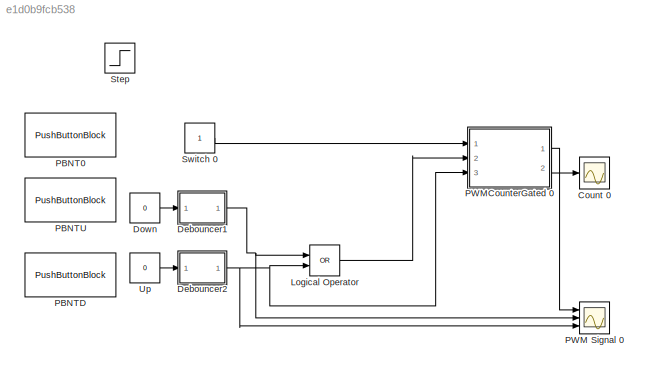
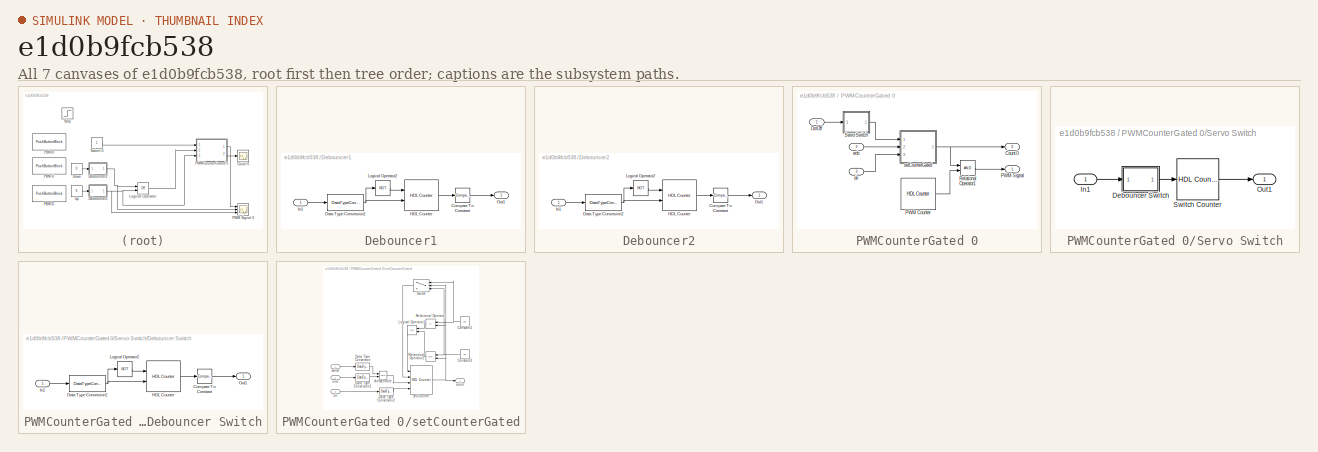
[diagram: thumbnail index - all 7 canvases of the model, root first then tree order]
MODEL slx_e1d0b9fcb538
KIND model
CONFIG AbsTol = auto
CONFIG EnableMultiTasking = off
CONFIG FixedStep = 1
CONFIG MaxStep = auto
CONFIG MinStep = auto
CONFIG RelTol = 1e-3
CONFIG SampleTimeConstraint = Unconstrained
CONFIG Solver = FixedStepDiscrete
CONFIG SolverName = FixedStepDiscrete
CONFIG StartTime = 0.0
CONFIG StopTime = 50000
BLOCK [Scope] Count 0
  Floating = off
  NumInputPorts = 1
  Ports = [1]
  ScopeSpecificationString = Simulink.scopes.TimeScopeBlockCfg('CurrentConfiguration', extmgr.ConfigurationSet(extmgr.Configuration('Core','General UI',true),extmgr.Configuration('Core','Source UI',true),extmgr.Configuration('Sources','WiredSimulink',true,'DataLoggingVariableName','ScopeData5'),extmgr.Configuration('Visuals','Time Domain',true,'SerializedDisplays',{struct('MinYLimReal','65.00000','MaxYLimReal','85.00000','YLa...<+1439ch>
BLOCK [SubSystem] Debouncer1
  Ports = [1, 1]
  RequestExecContextInheritance = off
BLOCK [Reference] Debouncer1/Compare To Constant  REF=simulink/Logic and Bit
Operations/Compare
To Constant
  Ports = [1, 1]
  SourceBlock = simulink/Logic and Bit\nOperations/Compare\nTo Constant
  SourceProductBaseCode = SL
  SourceProductName = Simulink
  SourceType = Compare To Constant
BLOCK [DataTypeConversion] Debouncer1/Data Type Conversion2
  OutDataTypeStr = boolean
  RndMeth = Floor
  SaturateOnIntegerOverflow = off
BLOCK [Reference] Debouncer1/HDL Counter   REF=hdlsllib/Sources/HDL Counter
  Ports = [2, 1]
  SourceBlock = hdlsllib/Sources/HDL Counter
  SourceProductBaseCode = HD
  SourceProductName = HDL Coder
  SourceType = HDL Counter
BLOCK [Inport] Debouncer1/In1
  IconDisplay = Port number
BLOCK [Logic] Debouncer1/Logical Operator2
  AllPortsSameDT = off
  Operator = NOT
  OutDataTypeStr = boolean
  Ports = [1, 1]
BLOCK [Outport] Debouncer1/Out1
  IconDisplay = Port number
BLOCK [SubSystem] Debouncer2
  Ports = [1, 1]
  RequestExecContextInheritance = off
BLOCK [Reference] Debouncer2/Compare To Constant  REF=simulink/Logic and Bit
Operations/Compare
To Constant
  Ports = [1, 1]
  SourceBlock = simulink/Logic and Bit\nOperations/Compare\nTo Constant
  SourceProductBaseCode = SL
  SourceProductName = Simulink
  SourceType = Compare To Constant
BLOCK [DataTypeConversion] Debouncer2/Data Type Conversion2
  OutDataTypeStr = boolean
  RndMeth = Floor
  SaturateOnIntegerOverflow = off
BLOCK [Reference] Debouncer2/HDL Counter   REF=hdlsllib/Sources/HDL Counter
  Ports = [2, 1]
  SourceBlock = hdlsllib/Sources/HDL Counter
  SourceProductBaseCode = HD
  SourceProductName = HDL Coder
  SourceType = HDL Counter
BLOCK [Inport] Debouncer2/In1
  IconDisplay = Port number
BLOCK [Logic] Debouncer2/Logical Operator2
  AllPortsSameDT = off
  Operator = NOT
  OutDataTypeStr = boolean
  Ports = [1, 1]
BLOCK [Outport] Debouncer2/Out1
  IconDisplay = Port number
BLOCK [Constant] Down
  Value = 0
BLOCK [Logic] Logical Operator
  AllPortsSameDT = off
  Operator = OR
  OutDataTypeStr = boolean
  Ports = [2, 1]
BLOCK [PushButtonBlock] PBNT0
  WebBlockId = 175
BLOCK [PushButtonBlock] PBNTD
  WebBlockId = 8
BLOCK [PushButtonBlock] PBNTU
  WebBlockId = 9
BLOCK [Scope] PWM Signal 0
  Floating = off
  NumInputPorts = 3
  Ports = [3]
  ScopeSpecificationString = Simulink.scopes.TimeScopeBlockCfg('CurrentConfiguration', extmgr.ConfigurationSet(extmgr.Configuration('Core','General UI',true),extmgr.Configuration('Core','Source UI',true),extmgr.Configuration('Sources','WiredSimulink',true),extmgr.Configuration('Visuals','Time Domain',true,'SerializedDisplays',{struct('MinYLimReal','-0.125','MaxYLimReal','1.125','YLabelReal','','MinYLimMag','0.00000','MaxYLimM...<+1406ch>
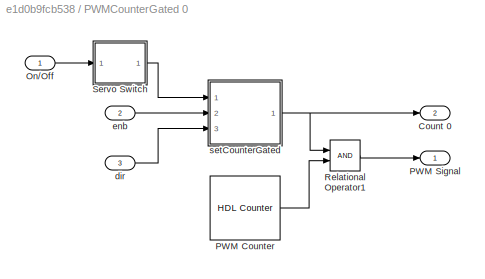
BLOCK [SubSystem] PWMCounterGated 0
  Ports = [3, 2]
  RequestExecContextInheritance = off
BLOCK [Outport] PWMCounterGated 0/Count 0
  IconDisplay = Port number
  Port = 2
BLOCK [Inport] PWMCounterGated 0/On//Off
  IconDisplay = Port number
BLOCK [Reference] PWMCounterGated 0/PWM Counter   REF=hdlsllib/Sources/HDL Counter
  Ports = [0, 1]
  SourceBlock = hdlsllib/Sources/HDL Counter
  SourceProductBaseCode = HD
  SourceProductName = HDL Coder
  SourceType = HDL Counter
BLOCK [Outport] PWMCounterGated 0/PWM Signal
  IconDisplay = Port number
BLOCK [RelationalOperator] PWMCounterGated 0/Relational Operator1
  InputSameDT = off
  OutDataTypeStr = boolean
  Ports = [2, 1]
  RndMeth = Simplest
BLOCK [SubSystem] PWMCounterGated 0/Servo Switch
  Ports = [1, 1]
  RequestExecContextInheritance = off
BLOCK [SubSystem] PWMCounterGated 0/Servo Switch/Debouncer Switch
  Ports = [1, 1]
  RequestExecContextInheritance = off
BLOCK [Reference] PWMCounterGated 0/Servo Switch/Debouncer Switch/Compare To Constant  REF=simulink/Logic and Bit
Operations/Compare
To Constant
  Ports = [1, 1]
  SourceBlock = simulink/Logic and Bit\nOperations/Compare\nTo Constant
  SourceProductBaseCode = SL
  SourceProductName = Simulink
  SourceType = Compare To Constant
BLOCK [DataTypeConversion] PWMCounterGated 0/Servo Switch/Debouncer Switch/Data Type Conversion2
  OutDataTypeStr = boolean
  RndMeth = Floor
  SaturateOnIntegerOverflow = off
BLOCK [Reference] PWMCounterGated 0/Servo Switch/Debouncer Switch/HDL Counter   REF=hdlsllib/Sources/HDL Counter
  Ports = [2, 1]
  SourceBlock = hdlsllib/Sources/HDL Counter
  SourceProductBaseCode = HD
  SourceProductName = HDL Coder
  SourceType = HDL Counter
BLOCK [Inport] PWMCounterGated 0/Servo Switch/Debouncer Switch/In1
  IconDisplay = Port number
BLOCK [Logic] PWMCounterGated 0/Servo Switch/Debouncer Switch/Logical Operator2
  AllPortsSameDT = off
  Operator = NOT
  OutDataTypeStr = boolean
  Ports = [1, 1]
BLOCK [Outport] PWMCounterGated 0/Servo Switch/Debouncer Switch/Out1
  IconDisplay = Port number
BLOCK [Inport] PWMCounterGated 0/Servo Switch/In1
  IconDisplay = Port number
BLOCK [Outport] PWMCounterGated 0/Servo Switch/Out1
  IconDisplay = Port number
BLOCK [Reference] PWMCounterGated 0/Servo Switch/Switch Counter  REF=hdlsllib/Sources/HDL Counter
  Ports = [1, 1]
  SourceBlock = hdlsllib/Sources/HDL Counter
  SourceProductBaseCode = HD
  SourceProductName = HDL Coder
  SourceType = HDL Counter
BLOCK [Inport] PWMCounterGated 0/dir
  IconDisplay = Port number
  Port = 3
BLOCK [Inport] PWMCounterGated 0/enb
  IconDisplay = Port number
  Port = 2
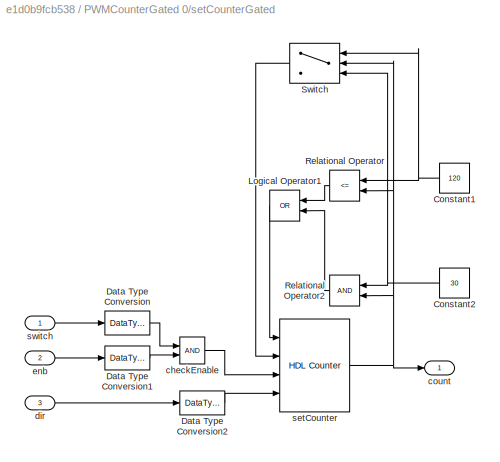
BLOCK [SubSystem] PWMCounterGated 0/setCounterGated
  Ports = [3, 1]
  RequestExecContextInheritance = off
BLOCK [Constant] PWMCounterGated 0/setCounterGated/Constant1
  OutDataTypeStr = double
  SampleTime = 1
  Value = 120
BLOCK [Constant] PWMCounterGated 0/setCounterGated/Constant2
  OutDataTypeStr = double
  SampleTime = 1
  Value = 30
BLOCK [DataTypeConversion] PWMCounterGated 0/setCounterGated/Data Type Conversion
  OutDataTypeStr = boolean
  RndMeth = Floor
  SaturateOnIntegerOverflow = off
BLOCK [DataTypeConversion] PWMCounterGated 0/setCounterGated/Data Type Conversion1
  OutDataTypeStr = boolean
  RndMeth = Floor
  SaturateOnIntegerOverflow = off
BLOCK [DataTypeConversion] PWMCounterGated 0/setCounterGated/Data Type Conversion2
  OutDataTypeStr = boolean
  RndMeth = Floor
  SaturateOnIntegerOverflow = off
BLOCK [Logic] PWMCounterGated 0/setCounterGated/Logical Operator1
  AllPortsSameDT = off
  Operator = OR
  OutDataTypeStr = boolean
  Ports = [2, 1]
BLOCK [RelationalOperator] PWMCounterGated 0/setCounterGated/Relational Operator
  InputSameDT = off
  Operator = <=
  OutDataTypeStr = boolean
  Ports = [2, 1]
  RndMeth = Simplest
BLOCK [RelationalOperator] PWMCounterGated 0/setCounterGated/Relational Operator2
  InputSameDT = off
  OutDataTypeStr = boolean
  Ports = [2, 1]
  RndMeth = Simplest
BLOCK [Switch] PWMCounterGated 0/setCounterGated/Switch
  Criteria = u2 > Threshold
  InputSameDT = off
  LockScale = on
  OutDataTypeStr = int16
  SaturateOnIntegerOverflow = off
  Threshold = 75
BLOCK [Logic] PWMCounterGated 0/setCounterGated/checkEnable
  AllPortsSameDT = off
  OutDataTypeStr = boolean
  Ports = [2, 1]
BLOCK [Outport] PWMCounterGated 0/setCounterGated/count
  IconDisplay = Port number
BLOCK [Inport] PWMCounterGated 0/setCounterGated/dir
  IconDisplay = Port number
  Port = 3
BLOCK [Inport] PWMCounterGated 0/setCounterGated/enb
  IconDisplay = Port number
  Port = 2
BLOCK [Reference] PWMCounterGated 0/setCounterGated/setCounter  REF=hdlsllib/Sources/HDL Counter
  Ports = [4, 1]
  SourceBlock = hdlsllib/Sources/HDL Counter
  SourceProductBaseCode = HD
  SourceProductName = HDL Coder
  SourceType = HDL Counter
BLOCK [Inport] PWMCounterGated 0/setCounterGated/switch
  IconDisplay = Port number
BLOCK [Step] Step
  SampleTime = 0
  Time = 12500
BLOCK [Constant] Switch 0
BLOCK [Constant] Up
  Value = 0
LINE Debouncer1/Compare To Constant:1 -> Debouncer1/Out1:1
NET Debouncer1/Data Type Conversion2:1 -> Debouncer1/HDL Counter :2, Debouncer1/Logical Operator2:1
LINE Debouncer1/HDL Counter :1 -> Debouncer1/Compare To Constant:1
LINE Debouncer1/In1:1 -> Debouncer1/Data Type Conversion2:1
LINE Debouncer1/Logical Operator2:1 -> Debouncer1/HDL Counter :1
NET Debouncer1:1 -> Logical Operator:1, PWM Signal 0:2
LINE Debouncer2/Compare To Constant:1 -> Debouncer2/Out1:1
NET Debouncer2/Data Type Conversion2:1 -> Debouncer2/HDL Counter :2, Debouncer2/Logical Operator2:1
LINE Debouncer2/HDL Counter :1 -> Debouncer2/Compare To Constant:1
LINE Debouncer2/In1:1 -> Debouncer2/Data Type Conversion2:1
LINE Debouncer2/Logical Operator2:1 -> Debouncer2/HDL Counter :1
NET Debouncer2:1 -> Logical Operator:2, PWM Signal 0:3, PWMCounterGated 0:3
LINE Down:1 -> Debouncer1:1
LINE Logical Operator:1 -> PWMCounterGated 0:2
LINE PWMCounterGated 0/On//Off:1 -> PWMCounterGated 0/Servo Switch:1
LINE PWMCounterGated 0/PWM Counter :1 -> PWMCounterGated 0/Relational Operator1:2
LINE PWMCounterGated 0/Relational Operator1:1 -> PWMCounterGated 0/PWM Signal:1
LINE PWMCounterGated 0/Servo Switch/Debouncer Switch/Compare To Constant:1 -> PWMCounterGated 0/Servo Switch/Debouncer Switch/Out1:1
NET PWMCounterGated 0/Servo Switch/Debouncer Switch/Data Type Conversion2:1 -> PWMCounterGated 0/Servo Switch/Debouncer Switch/HDL Counter :2, PWMCounterGated 0/Servo Switch/Debouncer Switch/Logical Operator2:1
LINE PWMCounterGated 0/Servo Switch/Debouncer Switch/HDL Counter :1 -> PWMCounterGated 0/Servo Switch/Debouncer Switch/Compare To Constant:1
LINE PWMCounterGated 0/Servo Switch/Debouncer Switch/In1:1 -> PWMCounterGated 0/Servo Switch/Debouncer Switch/Data Type Conversion2:1
LINE PWMCounterGated 0/Servo Switch/Debouncer Switch/Logical Operator2:1 -> PWMCounterGated 0/Servo Switch/Debouncer Switch/HDL Counter :1
LINE PWMCounterGated 0/Servo Switch/Debouncer Switch:1 -> PWMCounterGated 0/Servo Switch/Switch Counter:1
LINE PWMCounterGated 0/Servo Switch/In1:1 -> PWMCounterGated 0/Servo Switch/Debouncer Switch:1
LINE PWMCounterGated 0/Servo Switch/Switch Counter:1 -> PWMCounterGated 0/Servo Switch/Out1:1
LINE PWMCounterGated 0/Servo Switch:1 -> PWMCounterGated 0/setCounterGated:1
LINE PWMCounterGated 0/dir:1 -> PWMCounterGated 0/setCounterGated:3
LINE PWMCounterGated 0/enb:1 -> PWMCounterGated 0/setCounterGated:2
NET PWMCounterGated 0/setCounterGated/Constant1:1 -> PWMCounterGated 0/setCounterGated/Relational Operator:1, PWMCounterGated 0/setCounterGated/Switch:1
NET PWMCounterGated 0/setCounterGated/Constant2:1 -> PWMCounterGated 0/setCounterGated/Relational Operator2:1, PWMCounterGated 0/setCounterGated/Switch:3
LINE PWMCounterGated 0/setCounterGated/Data Type Conversion1:1 -> PWMCounterGated 0/setCounterGated/checkEnable:2
LINE PWMCounterGated 0/setCounterGated/Data Type Conversion2:1 -> PWMCounterGated 0/setCounterGated/setCounter:4
LINE PWMCounterGated 0/setCounterGated/Data Type Conversion:1 -> PWMCounterGated 0/setCounterGated/checkEnable:1
LINE PWMCounterGated 0/setCounterGated/Logical Operator1:1 -> PWMCounterGated 0/setCounterGated/setCounter:1
LINE PWMCounterGated 0/setCounterGated/Relational Operator2:1 -> PWMCounterGated 0/setCounterGated/Logical Operator1:2
LINE PWMCounterGated 0/setCounterGated/Relational Operator:1 -> PWMCounterGated 0/setCounterGated/Logical Operator1:1
LINE PWMCounterGated 0/setCounterGated/Switch:1 -> PWMCounterGated 0/setCounterGated/setCounter:2
LINE PWMCounterGated 0/setCounterGated/checkEnable:1 -> PWMCounterGated 0/setCounterGated/setCounter:3
LINE PWMCounterGated 0/setCounterGated/dir:1 -> PWMCounterGated 0/setCounterGated/Data Type Conversion2:1
LINE PWMCounterGated 0/setCounterGated/enb:1 -> PWMCounterGated 0/setCounterGated/Data Type Conversion1:1
NET PWMCounterGated 0/setCounterGated/setCounter:1 -> PWMCounterGated 0/setCounterGated/Relational Operator2:2, PWMCounterGated 0/setCounterGated/Relational Operator:2, PWMCounterGated 0/setCounterGated/Switch:2, PWMCounterGated 0/setCounterGated/count:1
LINE PWMCounterGated 0/setCounterGated/switch:1 -> PWMCounterGated 0/setCounterGated/Data Type Conversion:1
NET PWMCounterGated 0/setCounterGated:1 -> PWMCounterGated 0/Count 0:1, PWMCounterGated 0/Relational Operator1:1
LINE PWMCounterGated 0:1 -> PWM Signal 0:1
LINE PWMCounterGated 0:2 -> Count 0:1
LINE Switch 0:1 -> PWMCounterGated 0:1
LINE Up:1 -> Debouncer2:1
note: NET lines group one-source signal fan-out (src -> all destinations, sorted); 1:1 wires keep LINE
